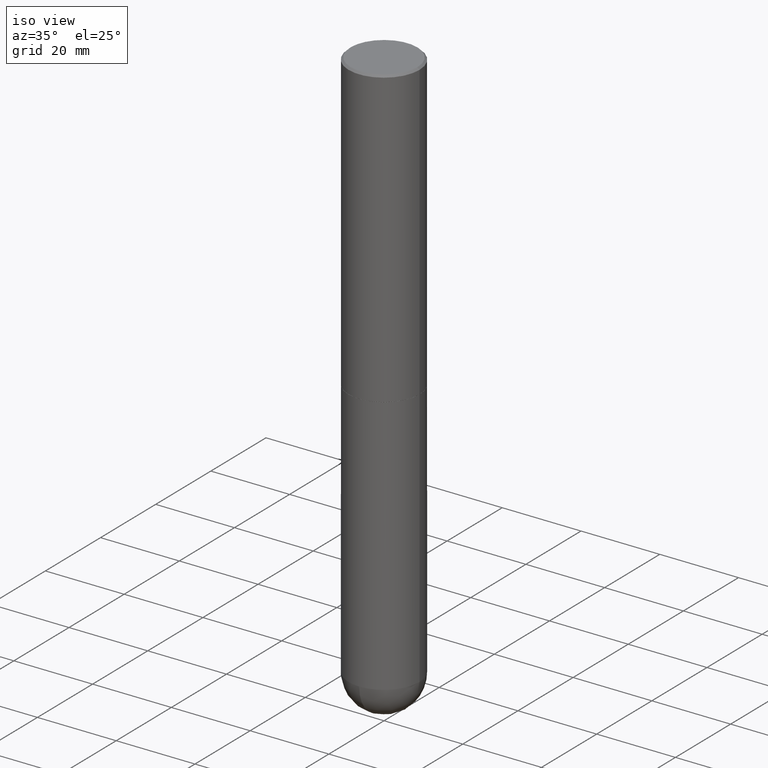
[diagram: clean part render]
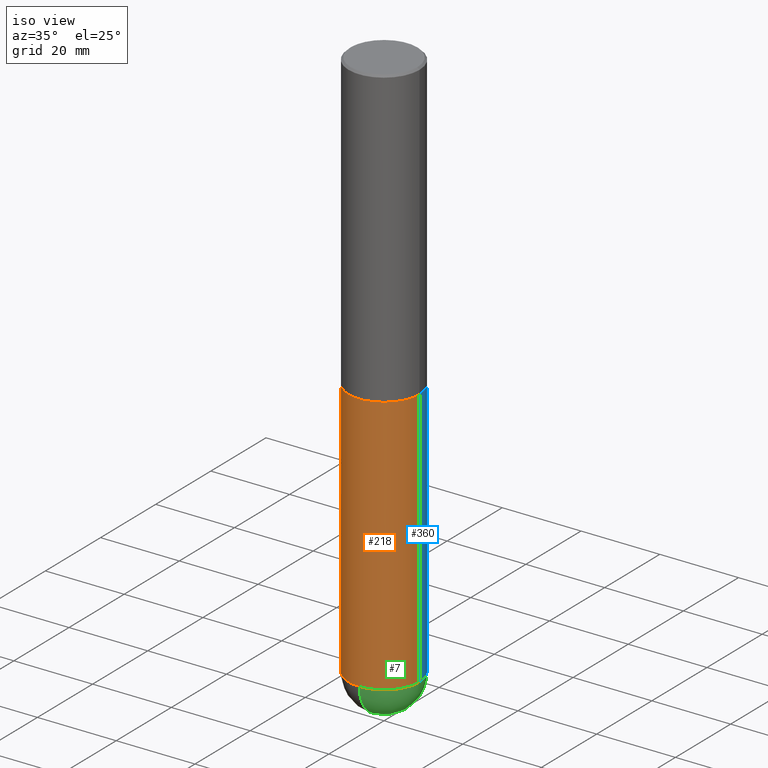
[diagram: same view with three faces highlighted in distinct colors, each labeled with its STEP entity id]
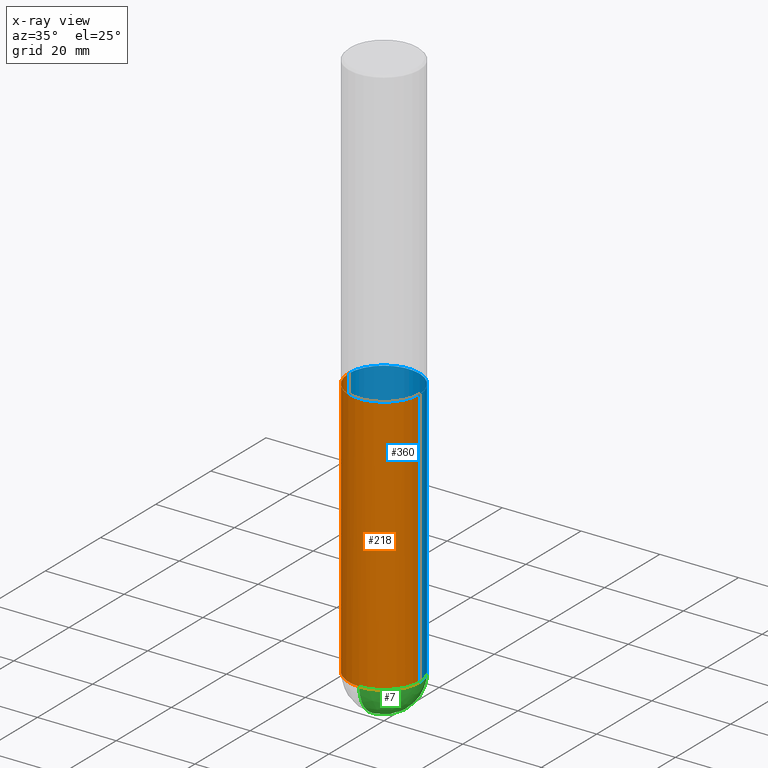
[diagram: x-ray of the same camera — body ghosted, the three highlighted faces saturated]
A machine part, iso view with three faces highlighted in distinct colors.
The next image is the same camera in x-ray (body ghosted, the three faces saturated) — at least one of them is partly hidden behind the body in this view.
Their STEP definitions:

[orange] entity #218 — the highlighted cylindrical surface (partial cylindrical patch) has radius 9.0005 mm, axis along (-0, 0, 1).
#8 = AXIS2_PLACEMENT_3D ( 'NONE', #55, #186, #92 ) ;
#20 = DIRECTION ( 'NONE',  ( -2.445468806185136597E-29, 3.491481338843145583E-15, 1.000000000000000000 ) ) ;
#23 = DIRECTION ( 'NONE',  ( 1.000000000000000000, -6.982962677686265922E-15, 0.000000000000000000 ) ) ;
#25 = CARTESIAN_POINT ( 'NONE',  ( -0.3543499999999999983, -1.232770860749472484E-14, -2.952700000000000102 ) ) ;
#38 = ORIENTED_EDGE ( 'NONE', *, *, #173, .T. ) ;
#40 = VECTOR ( 'NONE', #405, 39.37007874015748143 ) ;
#55 = CARTESIAN_POINT ( 'NONE',  ( 0.000000000000000000, 0.000000000000000000, 0.000000000000000000 ) ) ;
#60 = CARTESIAN_POINT ( 'NONE',  ( -2.517808184165781285E-15, -0.3543500000000196493, -5.551149999999998919 ) ) ;
#62 = FACE_OUTER_BOUND ( 'NONE', #80, .T. ) ;
#74 = AXIS2_PLACEMENT_3D ( 'NONE', #120, #89, #336 ) ;
#77 = ORIENTED_EDGE ( 'NONE', *, *, #299, .T. ) ;
#80 = EDGE_LOOP ( 'NONE', ( #271, #77, #354, #38, #136 ) ) ;
#88 = CARTESIAN_POINT ( 'NONE',  ( 0.3543499999999999983, -1.278370977404028332E-14, -2.952700000000000102 ) ) ;
#89 = DIRECTION ( 'NONE',  ( -2.445468806185136597E-29, 3.491481338843145583E-15, 1.000000000000000000 ) ) ;
#90 = CYLINDRICAL_SURFACE ( 'NONE', #8, 0.3543499999999999983 ) ;
#91 = LINE ( 'NONE', #371, #308 ) ;
#92 = DIRECTION ( 'NONE',  ( 1.000000000000000000, -6.982962677686266711E-15, 4.876176775795935793E-29 ) ) ;
#108 = CIRCLE ( 'NONE', #351, 0.3543499999999999428 ) ;
#117 = CARTESIAN_POINT ( 'NONE',  ( -0.3543499999999999428, -1.232770860749472642E-14, -5.551149999999999807 ) ) ;
#120 = CARTESIAN_POINT ( 'NONE',  ( 1.357516416345461774E-28, -1.938173663411912545E-14, -5.551149999999999807 ) ) ;
#136 = ORIENTED_EDGE ( 'NONE', *, *, #158, .F. ) ;
#137 = VERTEX_POINT ( 'NONE', #88 ) ;
#158 = EDGE_CURVE ( 'NONE', #289, #137, #254, .T. ) ;
#164 = AXIS2_PLACEMENT_3D ( 'NONE', #277, #274, #23 ) ;
#173 = EDGE_CURVE ( 'NONE', #290, #137, #221, .T. ) ;
#186 = DIRECTION ( 'NONE',  ( -2.445468806185136597E-29, 3.491481338843145583E-15, 1.000000000000000000 ) ) ;
#218 = ADVANCED_FACE ( 'NONE', ( #62 ), #90, .T. ) ;
#219 = CARTESIAN_POINT ( 'NONE',  ( 0.3543499999999999428, -1.731992961649876932E-14, -5.551149999999999807 ) ) ;
#221 = LINE ( 'NONE', #246, #40 ) ;
#245 = DIRECTION ( 'NONE',  ( -2.445468806185136877E-29, 3.491481338843145188E-15, 1.000000000000000000 ) ) ;
#246 = CARTESIAN_POINT ( 'NONE',  ( 0.3543499999999999983, -2.474412824838128694E-15, 1.727873240503289749E-29 ) ) ;
#254 = CIRCLE ( 'NONE', #164, 0.3543499999999999983 ) ;
#263 = EDGE_CURVE ( 'NONE', #356, #290, #301, .T. ) ;
#271 = ORIENTED_EDGE ( 'NONE', *, *, #286, .F. ) ;
#274 = DIRECTION ( 'NONE',  ( -2.445468806185136597E-29, 3.491481338843145583E-15, 1.000000000000000000 ) ) ;
#277 = CARTESIAN_POINT ( 'NONE',  ( 7.220735744022852519E-29, -1.030929694920215502E-14, -2.952700000000000102 ) ) ;
#286 = EDGE_CURVE ( 'NONE', #348, #289, #91, .T. ) ;
#289 = VERTEX_POINT ( 'NONE', #25 ) ;
#290 = VERTEX_POINT ( 'NONE', #219 ) ;
#299 = EDGE_CURVE ( 'NONE', #348, #356, #108, .T. ) ;
#301 = CIRCLE ( 'NONE', #74, 0.3543499999999999428 ) ;
#305 = CARTESIAN_POINT ( 'NONE',  ( 1.357516416345461774E-28, -1.938173663411912545E-14, -5.551149999999999807 ) ) ;
#308 = VECTOR ( 'NONE', #245, 39.37007874015748143 ) ;
#336 = DIRECTION ( 'NONE',  ( 1.000000000000000000, -6.982962677686261189E-15, 0.000000000000000000 ) ) ;
#348 = VERTEX_POINT ( 'NONE', #117 ) ;
#351 = AXIS2_PLACEMENT_3D ( 'NONE', #305, #20, #404 ) ;
#354 = ORIENTED_EDGE ( 'NONE', *, *, #263, .T. ) ;
#356 = VERTEX_POINT ( 'NONE', #60 ) ;
#371 = CARTESIAN_POINT ( 'NONE',  ( -0.3543499999999999983, 2.517808184165914997E-15, -1.743024649231826066E-29 ) ) ;
#404 = DIRECTION ( 'NONE',  ( 1.000000000000000000, -6.982962677686261189E-15, 0.000000000000000000 ) ) ;
#405 = DIRECTION ( 'NONE',  ( -2.445468806185136877E-29, 3.491481338843145188E-15, 1.000000000000000000 ) ) ;

[blue] entity #360 — the highlighted cylindrical surface (partial cylindrical patch) has radius 9.0005 mm, axis along (-0, 0, 1).
#6 = ORIENTED_EDGE ( 'NONE', *, *, #140, .T. ) ;
#25 = CARTESIAN_POINT ( 'NONE',  ( -0.3543499999999999983, -1.232770860749472484E-14, -2.952700000000000102 ) ) ;
#32 = AXIS2_PLACEMENT_3D ( 'NONE', #343, #122, #190 ) ;
#40 = VECTOR ( 'NONE', #405, 39.37007874015748143 ) ;
#61 = DIRECTION ( 'NONE',  ( -2.445468806185136597E-29, 3.491481338843145583E-15, 1.000000000000000000 ) ) ;
#68 = AXIS2_PLACEMENT_3D ( 'NONE', #382, #250, #313 ) ;
#85 = DIRECTION ( 'NONE',  ( -2.445468806185136597E-29, 3.491481338843145583E-15, 1.000000000000000000 ) ) ;
#88 = CARTESIAN_POINT ( 'NONE',  ( 0.3543499999999999983, -1.278370977404028332E-14, -2.952700000000000102 ) ) ;
#91 = LINE ( 'NONE', #371, #308 ) ;
#117 = CARTESIAN_POINT ( 'NONE',  ( -0.3543499999999999428, -1.232770860749472642E-14, -5.551149999999999807 ) ) ;
#122 = DIRECTION ( 'NONE',  ( -2.445468806185136597E-29, 3.491481338843145583E-15, 1.000000000000000000 ) ) ;
#137 = VERTEX_POINT ( 'NONE', #88 ) ;
#140 = EDGE_CURVE ( 'NONE', #392, #348, #316, .T. ) ;
#144 = EDGE_LOOP ( 'NONE', ( #6, #291, #385, #239, #233 ) ) ;
#173 = EDGE_CURVE ( 'NONE', #290, #137, #221, .T. ) ;
#181 = CYLINDRICAL_SURFACE ( 'NONE', #389, 0.3543499999999999983 ) ;
#190 = DIRECTION ( 'NONE',  ( 1.000000000000000000, -6.982962677686261189E-15, 0.000000000000000000 ) ) ;
#191 = DIRECTION ( 'NONE',  ( 1.000000000000000000, -6.982962677686265922E-15, 0.000000000000000000 ) ) ;
#196 = AXIS2_PLACEMENT_3D ( 'NONE', #223, #61, #191 ) ;
#210 = CIRCLE ( 'NONE', #32, 0.3543499999999999428 ) ;
#219 = CARTESIAN_POINT ( 'NONE',  ( 0.3543499999999999428, -1.731992961649876932E-14, -5.551149999999999807 ) ) ;
#221 = LINE ( 'NONE', #246, #40 ) ;
#223 = CARTESIAN_POINT ( 'NONE',  ( 7.220735744022852519E-29, -1.030929694920215502E-14, -2.952700000000000102 ) ) ;
#233 = ORIENTED_EDGE ( 'NONE', *, *, #408, .T. ) ;
#236 = EDGE_CURVE ( 'NONE', #137, #289, #393, .T. ) ;
#239 = ORIENTED_EDGE ( 'NONE', *, *, #173, .F. ) ;
#240 = CARTESIAN_POINT ( 'NONE',  ( 2.474412824838263195E-15, 0.3543499999999804584, -5.551150000000000695 ) ) ;
#245 = DIRECTION ( 'NONE',  ( -2.445468806185136877E-29, 3.491481338843145188E-15, 1.000000000000000000 ) ) ;
#246 = CARTESIAN_POINT ( 'NONE',  ( 0.3543499999999999983, -2.474412824838128694E-15, 1.727873240503289749E-29 ) ) ;
#250 = DIRECTION ( 'NONE',  ( -2.445468806185136597E-29, 3.491481338843145583E-15, 1.000000000000000000 ) ) ;
#270 = DIRECTION ( 'NONE',  ( 1.000000000000000000, -6.982962677686266711E-15, 4.876176775795935793E-29 ) ) ;
#273 = CARTESIAN_POINT ( 'NONE',  ( 0.000000000000000000, 0.000000000000000000, 0.000000000000000000 ) ) ;
#286 = EDGE_CURVE ( 'NONE', #348, #289, #91, .T. ) ;
#289 = VERTEX_POINT ( 'NONE', #25 ) ;
#290 = VERTEX_POINT ( 'NONE', #219 ) ;
#291 = ORIENTED_EDGE ( 'NONE', *, *, #286, .T. ) ;
#308 = VECTOR ( 'NONE', #245, 39.37007874015748143 ) ;
#313 = DIRECTION ( 'NONE',  ( 1.000000000000000000, -6.982962677686261189E-15, 0.000000000000000000 ) ) ;
#316 = CIRCLE ( 'NONE', #68, 0.3543499999999999428 ) ;
#343 = CARTESIAN_POINT ( 'NONE',  ( 1.357516416345461774E-28, -1.938173663411912545E-14, -5.551149999999999807 ) ) ;
#348 = VERTEX_POINT ( 'NONE', #117 ) ;
#360 = ADVANCED_FACE ( 'NONE', ( #378 ), #181, .T. ) ;
#371 = CARTESIAN_POINT ( 'NONE',  ( -0.3543499999999999983, 2.517808184165914997E-15, -1.743024649231826066E-29 ) ) ;
#378 = FACE_OUTER_BOUND ( 'NONE', #144, .T. ) ;
#382 = CARTESIAN_POINT ( 'NONE',  ( 1.357516416345461774E-28, -1.938173663411912545E-14, -5.551149999999999807 ) ) ;
#385 = ORIENTED_EDGE ( 'NONE', *, *, #236, .F. ) ;
#389 = AXIS2_PLACEMENT_3D ( 'NONE', #273, #85, #270 ) ;
#392 = VERTEX_POINT ( 'NONE', #240 ) ;
#393 = CIRCLE ( 'NONE', #196, 0.3543499999999999983 ) ;
#405 = DIRECTION ( 'NONE',  ( -2.445468806185136877E-29, 3.491481338843145188E-15, 1.000000000000000000 ) ) ;
#408 = EDGE_CURVE ( 'NONE', #290, #392, #210, .T. ) ;

[green] entity #7 — the highlighted spherical surface has radius 9.0005 mm.
#7 = ADVANCED_FACE ( 'NONE', ( #362 ), #335, .T. ) ;
#24 = CIRCLE ( 'NONE', #324, 0.3543500000000002204 ) ;
#32 = AXIS2_PLACEMENT_3D ( 'NONE', #343, #122, #190 ) ;
#36 = ORIENTED_EDGE ( 'NONE', *, *, #70, .T. ) ;
#47 = EDGE_CURVE ( 'NONE', #97, #356, #24, .T. ) ;
#49 = ORIENTED_EDGE ( 'NONE', *, *, #47, .F. ) ;
#56 = AXIS2_PLACEMENT_3D ( 'NONE', #111, #230, #297 ) ;
#60 = CARTESIAN_POINT ( 'NONE',  ( -2.517808184165781285E-15, -0.3543500000000196493, -5.551149999999998919 ) ) ;
#66 = ORIENTED_EDGE ( 'NONE', *, *, #408, .F. ) ;
#70 = EDGE_CURVE ( 'NONE', #97, #392, #411, .T. ) ;
#74 = AXIS2_PLACEMENT_3D ( 'NONE', #120, #89, #336 ) ;
#83 = DIRECTION ( 'NONE',  ( -7.105427357601001070E-15, -1.000000000000000000, 0.000000000000000000 ) ) ;
#89 = DIRECTION ( 'NONE',  ( -2.445468806185136597E-29, 3.491481338843145583E-15, 1.000000000000000000 ) ) ;
#97 = VERTEX_POINT ( 'NONE', #317 ) ;
#111 = CARTESIAN_POINT ( 'NONE',  ( 1.324404438554073486E-28, -1.985591900225917417E-14, -5.551149999999999807 ) ) ;
#113 = CARTESIAN_POINT ( 'NONE',  ( 1.324404438554073486E-28, -1.985591900225917417E-14, -5.551149999999999807 ) ) ;
#120 = CARTESIAN_POINT ( 'NONE',  ( 1.357516416345461774E-28, -1.938173663411912545E-14, -5.551149999999999807 ) ) ;
#122 = DIRECTION ( 'NONE',  ( -2.445468806185136597E-29, 3.491481338843145583E-15, 1.000000000000000000 ) ) ;
#151 = CARTESIAN_POINT ( 'NONE',  ( 1.324404438554073486E-28, -1.985591900225917417E-14, -5.551149999999999807 ) ) ;
#190 = DIRECTION ( 'NONE',  ( 1.000000000000000000, -6.982962677686261189E-15, 0.000000000000000000 ) ) ;
#199 = EDGE_LOOP ( 'NONE', ( #49, #36, #66, #390 ) ) ;
#210 = CIRCLE ( 'NONE', #32, 0.3543499999999999428 ) ;
#219 = CARTESIAN_POINT ( 'NONE',  ( 0.3543499999999999428, -1.731992961649876932E-14, -5.551149999999999807 ) ) ;
#230 = DIRECTION ( 'NONE',  ( -1.000000000000000000, 6.982962677686265922E-15, -4.883557194083112340E-29 ) ) ;
#240 = CARTESIAN_POINT ( 'NONE',  ( 2.474412824838263195E-15, 0.3543499999999804584, -5.551150000000000695 ) ) ;
#263 = EDGE_CURVE ( 'NONE', #356, #290, #301, .T. ) ;
#280 = DIRECTION ( 'NONE',  ( 6.982962677686265133E-15, 1.000000000000000000, 0.000000000000000000 ) ) ;
#290 = VERTEX_POINT ( 'NONE', #219 ) ;
#297 = DIRECTION ( 'NONE',  ( 6.982962677686265922E-15, 1.000000000000000000, -3.083784951222533328E-15 ) ) ;
#301 = CIRCLE ( 'NONE', #74, 0.3543499999999999428 ) ;
#317 = CARTESIAN_POINT ( 'NONE',  ( 1.412574766574097249E-28, -2.107142773501435227E-14, -5.905499999999999972 ) ) ;
#324 = AXIS2_PLACEMENT_3D ( 'NONE', #113, #364, #83 ) ;
#335 = SPHERICAL_SURFACE ( 'NONE', #56, 0.3543500000000002204 ) ;
#336 = DIRECTION ( 'NONE',  ( 1.000000000000000000, -6.982962677686261189E-15, 0.000000000000000000 ) ) ;
#343 = CARTESIAN_POINT ( 'NONE',  ( 1.357516416345461774E-28, -1.938173663411912545E-14, -5.551149999999999807 ) ) ;
#356 = VERTEX_POINT ( 'NONE', #60 ) ;
#362 = FACE_OUTER_BOUND ( 'NONE', #199, .T. ) ;
#364 = DIRECTION ( 'NONE',  ( -1.000000000000000000, 7.105427357601001070E-15, -4.926315508542082329E-29 ) ) ;
#388 = AXIS2_PLACEMENT_3D ( 'NONE', #151, #391, #280 ) ;
#390 = ORIENTED_EDGE ( 'NONE', *, *, #263, .F. ) ;
#391 = DIRECTION ( 'NONE',  ( 1.000000000000000000, -6.982962677686265922E-15, 4.883557194083112340E-29 ) ) ;
#392 = VERTEX_POINT ( 'NONE', #240 ) ;
#408 = EDGE_CURVE ( 'NONE', #290, #392, #210, .T. ) ;
#411 = CIRCLE ( 'NONE', #388, 0.3543500000000002204 ) ;